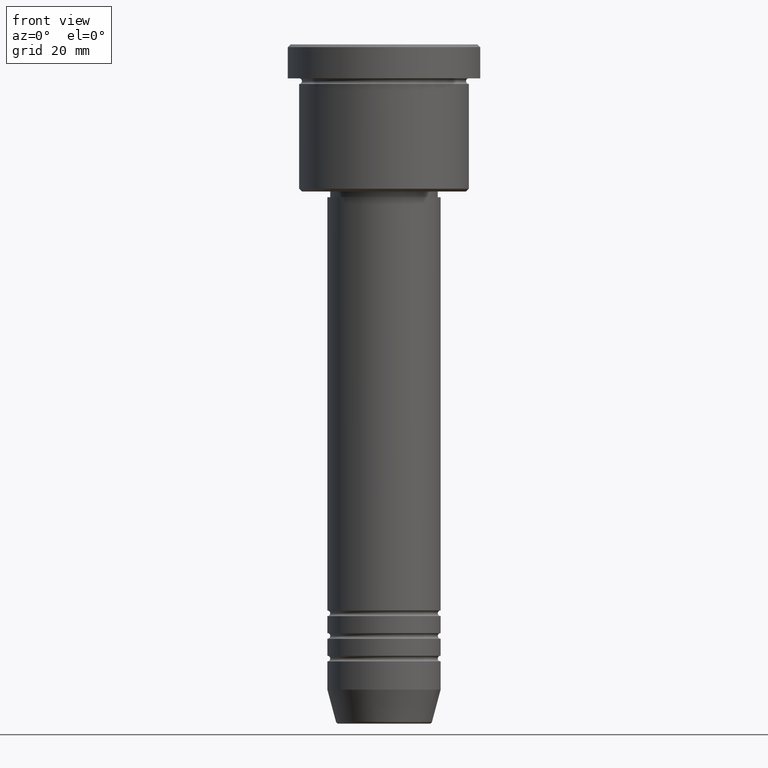
[diagram: clean part render]
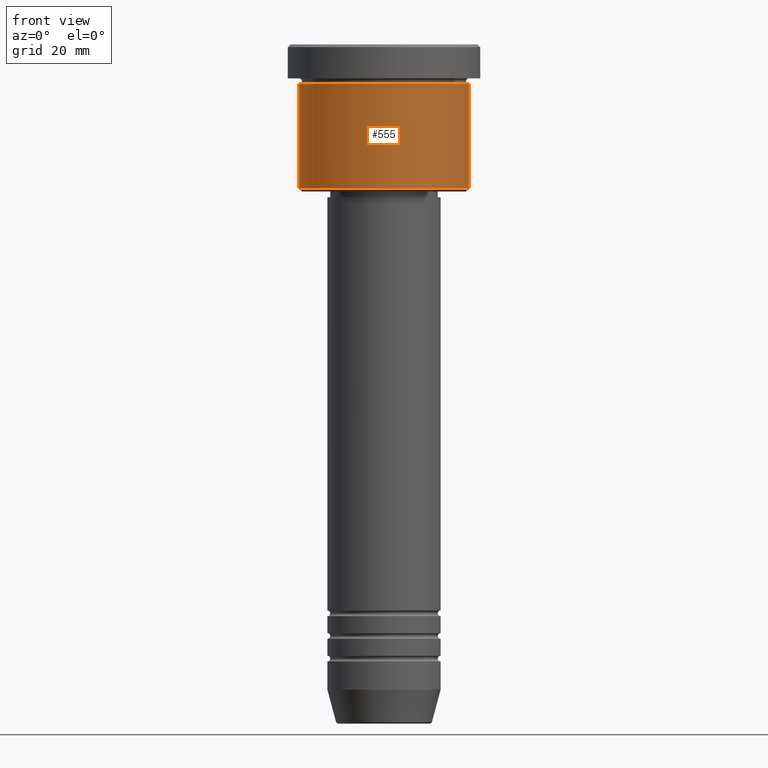
[diagram: same view with one face highlighted and labeled with its STEP entity id]
A machine part, front view. The second image highlights one B-rep face of the part: STEP entity #555.
In plain terms, the highlighted cylindrical surface (partial cylindrical patch) has radius 15 mm, axis along (-0, -0, 1).
Its self-contained STEP definition (entity closure, byte-faithful):
#17 = LINE ( 'NONE', #224, #1167 ) ;
#22 = CARTESIAN_POINT ( 'NONE',  ( 0.000000000000000000, 0.000000000000000000, -25.49999999999997868 ) ) ;
#61 = EDGE_CURVE ( 'NONE', #859, #617, #17, .T. ) ;
#79 = CARTESIAN_POINT ( 'NONE',  ( 15.00000000000000000, 0.000000000000000000, -25.49999999999997868 ) ) ;
#134 = EDGE_CURVE ( 'NONE', #736, #1180, #691, .T. ) ;
#197 = CYLINDRICAL_SURFACE ( 'NONE', #297, 15.00000000000000000 ) ;
#224 = CARTESIAN_POINT ( 'NONE',  ( -15.00000000000000000, 1.836970198721029589E-15, 0.000000000000000000 ) ) ;
#247 = DIRECTION ( 'NONE',  ( 1.000000000000000000, 0.000000000000000000, 0.000000000000000000 ) ) ;
#297 = AXIS2_PLACEMENT_3D ( 'NONE', #571, #961, #783 ) ;
#332 = CARTESIAN_POINT ( 'NONE',  ( -15.00000000000000000, 1.836970198721029589E-15, -25.49999999999997868 ) ) ;
#334 = CARTESIAN_POINT ( 'NONE',  ( 15.00000000000000000, 0.000000000000000000, 0.000000000000000000 ) ) ;
#335 = AXIS2_PLACEMENT_3D ( 'NONE', #1150, #425, #247 ) ;
#349 = EDGE_LOOP ( 'NONE', ( #587, #507, #943, #685 ) ) ;
#425 = DIRECTION ( 'NONE',  ( -0.000000000000000000, -0.000000000000000000, 1.000000000000000000 ) ) ;
#468 = EDGE_CURVE ( 'NONE', #859, #736, #718, .T. ) ;
#507 = ORIENTED_EDGE ( 'NONE', *, *, #468, .T. ) ;
#555 = ADVANCED_FACE ( 'NONE', ( #657 ), #197, .T. ) ;
#571 = CARTESIAN_POINT ( 'NONE',  ( 0.000000000000000000, 0.000000000000000000, 0.000000000000000000 ) ) ;
#581 = CIRCLE ( 'NONE', #335, 15.00000000000000000 ) ;
#587 = ORIENTED_EDGE ( 'NONE', *, *, #61, .F. ) ;
#617 = VERTEX_POINT ( 'NONE', #1064 ) ;
#657 = FACE_OUTER_BOUND ( 'NONE', #349, .T. ) ;
#672 = DIRECTION ( 'NONE',  ( -1.000000000000000000, 0.000000000000000000, 0.000000000000000000 ) ) ;
#685 = ORIENTED_EDGE ( 'NONE', *, *, #1175, .F. ) ;
#691 = LINE ( 'NONE', #334, #1029 ) ;
#718 = CIRCLE ( 'NONE', #1015, 15.00000000000000000 ) ;
#736 = VERTEX_POINT ( 'NONE', #79 ) ;
#783 = DIRECTION ( 'NONE',  ( 1.000000000000000000, 0.000000000000000000, 0.000000000000000000 ) ) ;
#794 = CARTESIAN_POINT ( 'NONE',  ( 15.00000000000000000, 0.000000000000000000, -6.999999999999995559 ) ) ;
#859 = VERTEX_POINT ( 'NONE', #332 ) ;
#943 = ORIENTED_EDGE ( 'NONE', *, *, #134, .T. ) ;
#961 = DIRECTION ( 'NONE',  ( -0.000000000000000000, -0.000000000000000000, 1.000000000000000000 ) ) ;
#963 = DIRECTION ( 'NONE',  ( -0.000000000000000000, -0.000000000000000000, 1.000000000000000000 ) ) ;
#1015 = AXIS2_PLACEMENT_3D ( 'NONE', #22, #1022, #672 ) ;
#1022 = DIRECTION ( 'NONE',  ( -0.000000000000000000, -0.000000000000000000, 1.000000000000000000 ) ) ;
#1024 = DIRECTION ( 'NONE',  ( -0.000000000000000000, -0.000000000000000000, 1.000000000000000000 ) ) ;
#1029 = VECTOR ( 'NONE', #963, 1000.000000000000000 ) ;
#1064 = CARTESIAN_POINT ( 'NONE',  ( -15.00000000000000000, 1.836970198721029589E-15, -6.999999999999995559 ) ) ;
#1150 = CARTESIAN_POINT ( 'NONE',  ( 0.000000000000000000, 0.000000000000000000, -6.999999999999995559 ) ) ;
#1167 = VECTOR ( 'NONE', #1024, 1000.000000000000000 ) ;
#1175 = EDGE_CURVE ( 'NONE', #617, #1180, #581, .T. ) ;
#1180 = VERTEX_POINT ( 'NONE', #794 ) ;